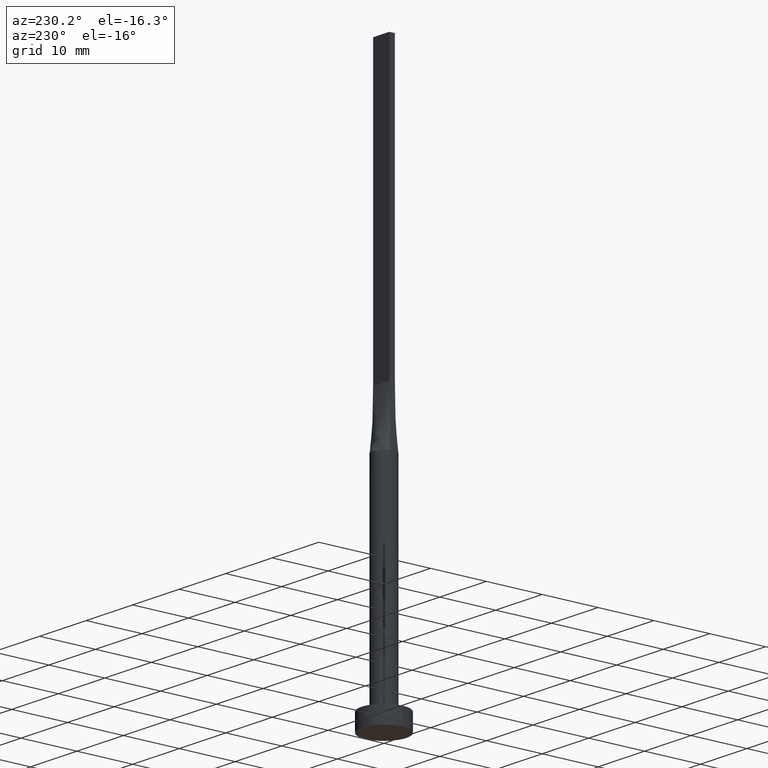
[diagram: clean part render]
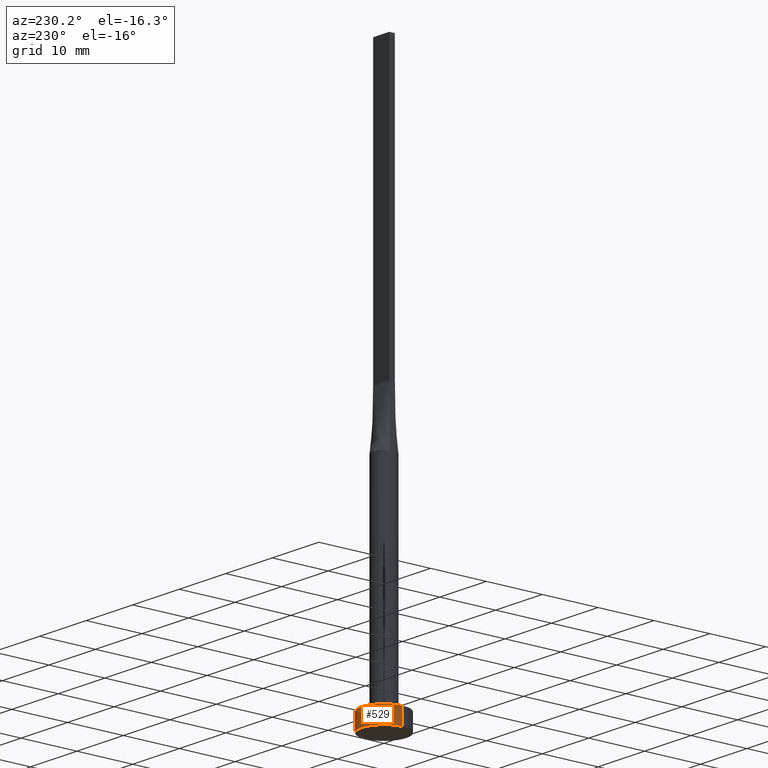
[diagram: same view with one face highlighted and labeled with its STEP entity id]
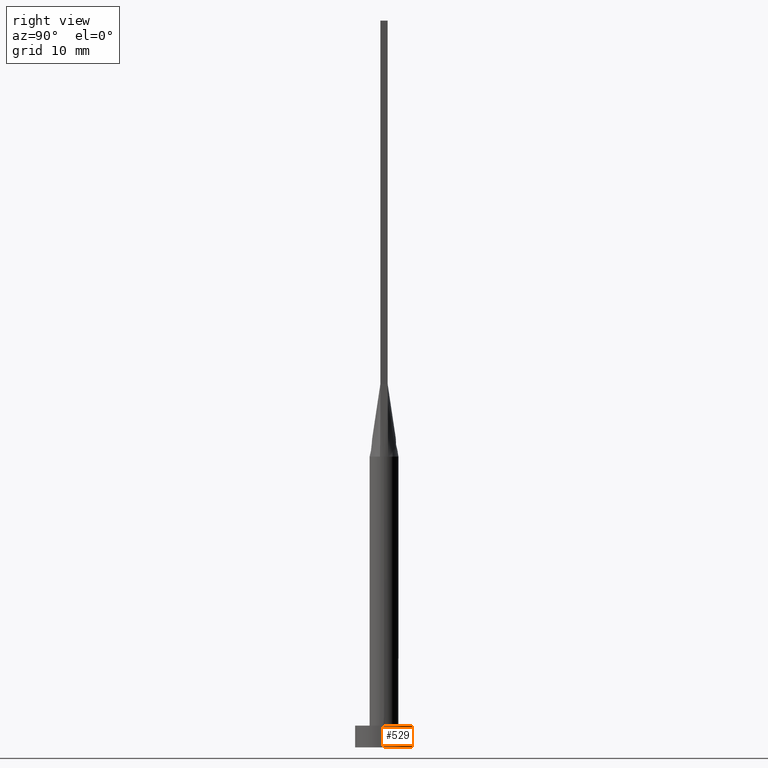
[diagram: same view with one face highlighted and labeled with its STEP entity id]
A machine part, auxiliary view. The second image highlights one B-rep face of the part: STEP entity #529.
A second angle (right view) of the same face is appended — the face is thin or edge-on in the first view.
In plain terms, the highlighted cylindrical surface (edge-blend (fillet) strip) has radius 4 mm, axis along (-0, -0, -1).
Its self-contained STEP definition (entity closure, byte-faithful):
#21 = ORIENTED_EDGE ( 'NONE', *, *, #326, .T. ) ;
#29 = DIRECTION ( 'NONE',  ( -0.000000000000000000, -0.000000000000000000, -1.000000000000000000 ) ) ;
#34 = DIRECTION ( 'NONE',  ( -1.000000000000000000, 0.000000000000000000, 0.000000000000000000 ) ) ;
#41 = CARTESIAN_POINT ( 'NONE',  ( -4.000000000000000000, 0.000000000000000000, 0.000000000000000000 ) ) ;
#43 = FACE_OUTER_BOUND ( 'NONE', #397, .T. ) ;
#69 = VERTEX_POINT ( 'NONE', #579 ) ;
#96 = VERTEX_POINT ( 'NONE', #501 ) ;
#99 = EDGE_CURVE ( 'NONE', #285, #228, #368, .T. ) ;
#102 = DIRECTION ( 'NONE',  ( -0.000000000000000000, -0.000000000000000000, -1.000000000000000000 ) ) ;
#161 = CARTESIAN_POINT ( 'NONE',  ( 4.000000000000000000, 4.898587196589412829E-16, 0.000000000000000000 ) ) ;
#162 = ORIENTED_EDGE ( 'NONE', *, *, #265, .F. ) ;
#212 = CARTESIAN_POINT ( 'NONE',  ( 0.000000000000000000, 0.000000000000000000, 3.000000000000000000 ) ) ;
#217 = DIRECTION ( 'NONE',  ( 0.000000000000000000, 0.000000000000000000, 1.000000000000000000 ) ) ;
#228 = VERTEX_POINT ( 'NONE', #41 ) ;
#251 = AXIS2_PLACEMENT_3D ( 'NONE', #212, #217, #403 ) ;
#253 = ORIENTED_EDGE ( 'NONE', *, *, #99, .T. ) ;
#256 = LINE ( 'NONE', #443, #568 ) ;
#265 = EDGE_CURVE ( 'NONE', #96, #228, #256, .T. ) ;
#285 = VERTEX_POINT ( 'NONE', #161 ) ;
#319 = DIRECTION ( 'NONE',  ( 0.000000000000000000, 0.000000000000000000, 1.000000000000000000 ) ) ;
#322 = AXIS2_PLACEMENT_3D ( 'NONE', #471, #319, #505 ) ;
#324 = VECTOR ( 'NONE', #102, 1000.000000000000000 ) ;
#326 = EDGE_CURVE ( 'NONE', #69, #285, #379, .T. ) ;
#368 = CIRCLE ( 'NONE', #322, 4.000000000000000000 ) ;
#371 = AXIS2_PLACEMENT_3D ( 'NONE', #499, #448, #34 ) ;
#379 = LINE ( 'NONE', #513, #324 ) ;
#397 = EDGE_LOOP ( 'NONE', ( #551, #21, #253, #162 ) ) ;
#403 = DIRECTION ( 'NONE',  ( 1.000000000000000000, 0.000000000000000000, 0.000000000000000000 ) ) ;
#443 = CARTESIAN_POINT ( 'NONE',  ( -4.000000000000000000, 0.000000000000000000, 3.000000000000000000 ) ) ;
#448 = DIRECTION ( 'NONE',  ( -0.000000000000000000, -0.000000000000000000, -1.000000000000000000 ) ) ;
#471 = CARTESIAN_POINT ( 'NONE',  ( 0.000000000000000000, 0.000000000000000000, 0.000000000000000000 ) ) ;
#489 = CIRCLE ( 'NONE', #251, 4.000000000000000000 ) ;
#499 = CARTESIAN_POINT ( 'NONE',  ( 0.000000000000000000, 0.000000000000000000, 3.000000000000000000 ) ) ;
#501 = CARTESIAN_POINT ( 'NONE',  ( -4.000000000000000000, 0.000000000000000000, 3.000000000000000000 ) ) ;
#505 = DIRECTION ( 'NONE',  ( 1.000000000000000000, 0.000000000000000000, 0.000000000000000000 ) ) ;
#513 = CARTESIAN_POINT ( 'NONE',  ( 4.000000000000000000, 4.898587196589412829E-16, 3.000000000000000000 ) ) ;
#529 = ADVANCED_FACE ( 'NONE', ( #43 ), #532, .T. ) ;
#532 = CYLINDRICAL_SURFACE ( 'NONE', #371, 4.000000000000000000 ) ;
#537 = EDGE_CURVE ( 'NONE', #69, #96, #489, .T. ) ;
#551 = ORIENTED_EDGE ( 'NONE', *, *, #537, .F. ) ;
#568 = VECTOR ( 'NONE', #29, 1000.000000000000000 ) ;
#579 = CARTESIAN_POINT ( 'NONE',  ( 4.000000000000000000, 4.898587196589412829E-16, 3.000000000000000000 ) ) ;